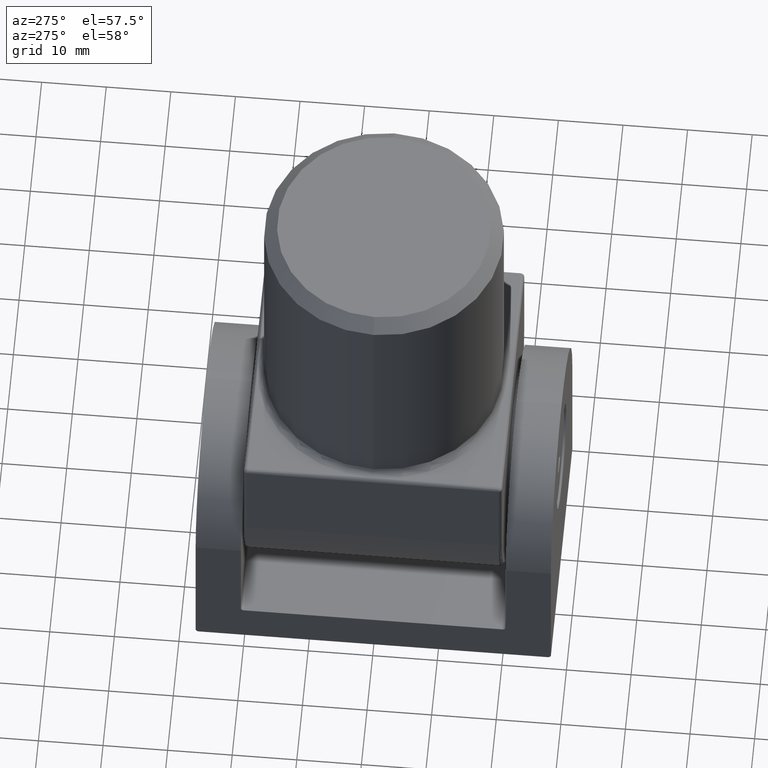
[diagram: clean part render]
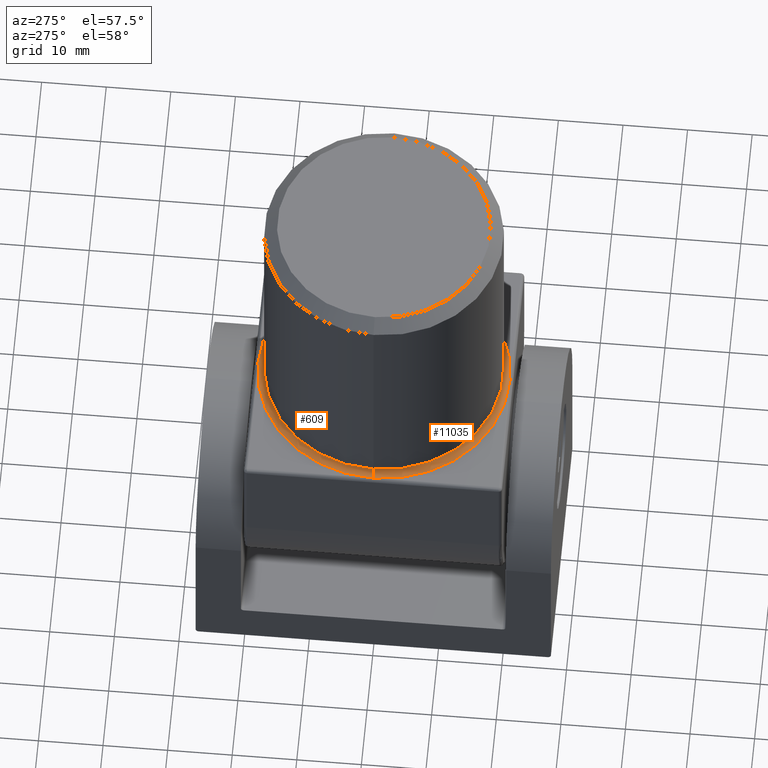
[diagram: same view with one multi-face feature highlighted, each face labeled with its STEP entity id]
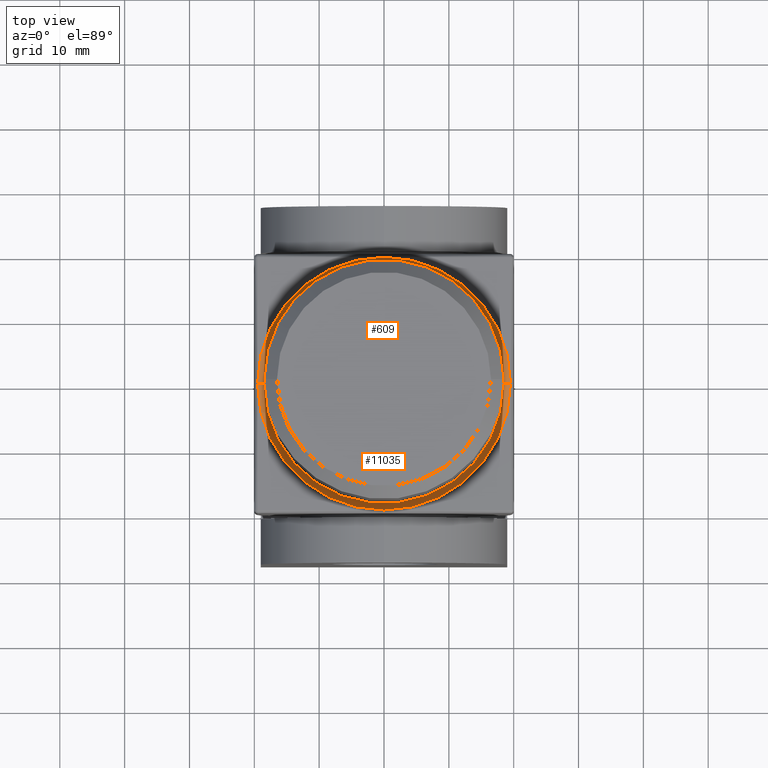
[diagram: same view with one multi-face feature highlighted, each face labeled with its STEP entity id]
A machine part, auxiliary view. The highlighted faces form ONE feature: a constant-radius fillet chain: 2 tangent blend faces with common blend radius 1 mm. The faces share edges in the B-rep.
A second angle (top view) of the same feature is appended — it is thin or edge-on in the first view.
Their STEP definitions:
[1] entity #609 (Torus):
#457 = CARTESIAN_POINT ( 'NONE',  ( 0.000000000000000000, 0.000000000000000000, 0.000000000000000000 ) ) ;
#483 = ORIENTED_EDGE ( 'NONE', *, *, #8889, .F. ) ;
#596 = CARTESIAN_POINT ( 'NONE',  ( 19.50000000000000000, 2.388061258337338939E-15, 1.000000000000000888 ) ) ;
#609 = ADVANCED_FACE ( 'NONE', ( #11898 ), #6009, .F. ) ;
#1089 = DIRECTION ( 'NONE',  ( 0.000000000000000000, 0.000000000000000000, -1.000000000000000000 ) ) ;
#1522 = DIRECTION ( 'NONE',  ( -0.000000000000000000, -1.000000000000000000, -0.000000000000000000 ) ) ;
#1656 = AXIS2_PLACEMENT_3D ( 'NONE', #17560, #7531, #9044 ) ;
#3251 = CARTESIAN_POINT ( 'NONE',  ( 19.50000000000000000, 0.000000000000000000, 0.000000000000000000 ) ) ;
#3421 = EDGE_CURVE ( 'NONE', #4048, #11614, #8863, .T. ) ;
#3516 = CARTESIAN_POINT ( 'NONE',  ( -18.50000000000000000, 0.000000000000000000, 1.000000000000000888 ) ) ;
#3701 = CARTESIAN_POINT ( 'NONE',  ( 0.000000000000000000, 19.50000000000000000, 0.000000000000000000 ) ) ;
#4048 = VERTEX_POINT ( 'NONE', #14614 ) ;
#4253 = AXIS2_PLACEMENT_3D ( 'NONE', #13056, #17253, #7224 ) ;
#5867 = AXIS2_PLACEMENT_3D ( 'NONE', #596, #13409, #10556 ) ;
#5914 = CIRCLE ( 'NONE', #1656, 19.50000000000000000 ) ;
#5950 = AXIS2_PLACEMENT_3D ( 'NONE', #12578, #1089, #8126 ) ;
#6009 = TOROIDAL_SURFACE ( 'NONE', #5950, 19.50000000000000000, 1.000000000000000000 ) ;
#7150 = ORIENTED_EDGE ( 'NONE', *, *, #3421, .T. ) ;
#7224 = DIRECTION ( 'NONE',  ( -1.000000000000000000, 0.000000000000000000, 0.000000000000000000 ) ) ;
#7531 = DIRECTION ( 'NONE',  ( 0.000000000000000000, 0.000000000000000000, -1.000000000000000000 ) ) ;
#7912 = VERTEX_POINT ( 'NONE', #10091 ) ;
#8126 = DIRECTION ( 'NONE',  ( -1.000000000000000000, 0.000000000000000000, 0.000000000000000000 ) ) ;
#8269 = AXIS2_PLACEMENT_3D ( 'NONE', #8876, #1522, #13081 ) ;
#8863 = CIRCLE ( 'NONE', #8269, 1.000000000000000000 ) ;
#8876 = CARTESIAN_POINT ( 'NONE',  ( -19.50000000000000000, 0.000000000000000000, 1.000000000000000888 ) ) ;
#8889 = EDGE_CURVE ( 'NONE', #4048, #11761, #12837, .T. ) ;
#9044 = DIRECTION ( 'NONE',  ( -1.000000000000000000, 0.000000000000000000, 0.000000000000000000 ) ) ;
#9538 = EDGE_LOOP ( 'NONE', ( #11526, #14846, #483, #7150, #14914 ) ) ;
#9623 = CIRCLE ( 'NONE', #5867, 1.000000000000000888 ) ;
#10091 = CARTESIAN_POINT ( 'NONE',  ( 18.50000000000000000, 2.265596578422603396E-15, 1.000000000000000888 ) ) ;
#10556 = DIRECTION ( 'NONE',  ( -1.000000000000000000, -1.224646799147353454E-16, 0.000000000000000000 ) ) ;
#11526 = ORIENTED_EDGE ( 'NONE', *, *, #17445, .F. ) ;
#11614 = VERTEX_POINT ( 'NONE', #3516 ) ;
#11761 = VERTEX_POINT ( 'NONE', #3701 ) ;
#11898 = FACE_OUTER_BOUND ( 'NONE', #9538, .T. ) ;
#12578 = CARTESIAN_POINT ( 'NONE',  ( 0.000000000000000000, 0.000000000000000000, 1.000000000000000888 ) ) ;
#12837 = CIRCLE ( 'NONE', #12913, 19.50000000000000000 ) ;
#12913 = AXIS2_PLACEMENT_3D ( 'NONE', #457, #13389, #14904 ) ;
#13056 = CARTESIAN_POINT ( 'NONE',  ( 0.000000000000000000, 0.000000000000000000, 1.000000000000000888 ) ) ;
#13081 = DIRECTION ( 'NONE',  ( 0.000000000000000000, 0.000000000000000000, -1.000000000000000000 ) ) ;
#13389 = DIRECTION ( 'NONE',  ( 0.000000000000000000, 0.000000000000000000, -1.000000000000000000 ) ) ;
#13409 = DIRECTION ( 'NONE',  ( -1.224646799147353207E-16, 1.000000000000000000, 0.000000000000000000 ) ) ;
#13626 = VERTEX_POINT ( 'NONE', #3251 ) ;
#14614 = CARTESIAN_POINT ( 'NONE',  ( -19.50000000000000000, 0.000000000000000000, 0.000000000000000000 ) ) ;
#14846 = ORIENTED_EDGE ( 'NONE', *, *, #18330, .F. ) ;
#14904 = DIRECTION ( 'NONE',  ( -1.000000000000000000, 0.000000000000000000, 0.000000000000000000 ) ) ;
#14914 = ORIENTED_EDGE ( 'NONE', *, *, #16431, .F. ) ;
#16431 = EDGE_CURVE ( 'NONE', #7912, #11614, #17552, .T. ) ;
#17253 = DIRECTION ( 'NONE',  ( -0.000000000000000000, -0.000000000000000000, 1.000000000000000000 ) ) ;
#17445 = EDGE_CURVE ( 'NONE', #13626, #7912, #9623, .T. ) ;
#17552 = CIRCLE ( 'NONE', #4253, 18.50000000000000000 ) ;
#17560 = CARTESIAN_POINT ( 'NONE',  ( 0.000000000000000000, 0.000000000000000000, 0.000000000000000000 ) ) ;
#18330 = EDGE_CURVE ( 'NONE', #11761, #13626, #5914, .T. ) ;
[2] entity #11035 (Torus):
#596 = CARTESIAN_POINT ( 'NONE',  ( 19.50000000000000000, 2.388061258337338939E-15, 1.000000000000000888 ) ) ;
#701 = ORIENTED_EDGE ( 'NONE', *, *, #4157, .F. ) ;
#897 = EDGE_CURVE ( 'NONE', #11614, #7912, #5776, .T. ) ;
#1379 = AXIS2_PLACEMENT_3D ( 'NONE', #9141, #9021, #10688 ) ;
#1522 = DIRECTION ( 'NONE',  ( -0.000000000000000000, -1.000000000000000000, -0.000000000000000000 ) ) ;
#1528 = VERTEX_POINT ( 'NONE', #4518 ) ;
#1744 = AXIS2_PLACEMENT_3D ( 'NONE', #9035, #7641, #13370 ) ;
#2152 = DIRECTION ( 'NONE',  ( -1.000000000000000000, 0.000000000000000000, 0.000000000000000000 ) ) ;
#3251 = CARTESIAN_POINT ( 'NONE',  ( 19.50000000000000000, 0.000000000000000000, 0.000000000000000000 ) ) ;
#3421 = EDGE_CURVE ( 'NONE', #4048, #11614, #8863, .T. ) ;
#3516 = CARTESIAN_POINT ( 'NONE',  ( -18.50000000000000000, 0.000000000000000000, 1.000000000000000888 ) ) ;
#4048 = VERTEX_POINT ( 'NONE', #14614 ) ;
#4157 = EDGE_CURVE ( 'NONE', #1528, #4048, #18633, .T. ) ;
#4518 = CARTESIAN_POINT ( 'NONE',  ( 0.000000000000000000, -19.50000000000000000, 0.000000000000000000 ) ) ;
#5107 = DIRECTION ( 'NONE',  ( 0.000000000000000000, 0.000000000000000000, -1.000000000000000000 ) ) ;
#5776 = CIRCLE ( 'NONE', #1744, 18.50000000000000000 ) ;
#5867 = AXIS2_PLACEMENT_3D ( 'NONE', #596, #13409, #10556 ) ;
#5910 = ORIENTED_EDGE ( 'NONE', *, *, #897, .F. ) ;
#5976 = AXIS2_PLACEMENT_3D ( 'NONE', #10203, #14709, #14640 ) ;
#7641 = DIRECTION ( 'NONE',  ( -0.000000000000000000, -0.000000000000000000, 1.000000000000000000 ) ) ;
#7912 = VERTEX_POINT ( 'NONE', #10091 ) ;
#8028 = CIRCLE ( 'NONE', #1379, 19.50000000000000000 ) ;
#8269 = AXIS2_PLACEMENT_3D ( 'NONE', #8876, #1522, #13081 ) ;
#8680 = FACE_OUTER_BOUND ( 'NONE', #10714, .T. ) ;
#8863 = CIRCLE ( 'NONE', #8269, 1.000000000000000000 ) ;
#8876 = CARTESIAN_POINT ( 'NONE',  ( -19.50000000000000000, 0.000000000000000000, 1.000000000000000888 ) ) ;
#9021 = DIRECTION ( 'NONE',  ( 0.000000000000000000, 0.000000000000000000, -1.000000000000000000 ) ) ;
#9035 = CARTESIAN_POINT ( 'NONE',  ( 0.000000000000000000, 0.000000000000000000, 1.000000000000000888 ) ) ;
#9141 = CARTESIAN_POINT ( 'NONE',  ( 0.000000000000000000, 0.000000000000000000, 0.000000000000000000 ) ) ;
#9623 = CIRCLE ( 'NONE', #5867, 1.000000000000000888 ) ;
#10091 = CARTESIAN_POINT ( 'NONE',  ( 18.50000000000000000, 2.265596578422603396E-15, 1.000000000000000888 ) ) ;
#10203 = CARTESIAN_POINT ( 'NONE',  ( 0.000000000000000000, 0.000000000000000000, 0.000000000000000000 ) ) ;
#10556 = DIRECTION ( 'NONE',  ( -1.000000000000000000, -1.224646799147353454E-16, 0.000000000000000000 ) ) ;
#10596 = ORIENTED_EDGE ( 'NONE', *, *, #3421, .F. ) ;
#10688 = DIRECTION ( 'NONE',  ( -1.000000000000000000, 0.000000000000000000, 0.000000000000000000 ) ) ;
#10714 = EDGE_LOOP ( 'NONE', ( #14733, #12269, #5910, #10596, #701 ) ) ;
#11035 = ADVANCED_FACE ( 'NONE', ( #8680 ), #13233, .F. ) ;
#11614 = VERTEX_POINT ( 'NONE', #3516 ) ;
#12269 = ORIENTED_EDGE ( 'NONE', *, *, #17445, .T. ) ;
#13081 = DIRECTION ( 'NONE',  ( 0.000000000000000000, 0.000000000000000000, -1.000000000000000000 ) ) ;
#13233 = TOROIDAL_SURFACE ( 'NONE', #16072, 19.50000000000000000, 1.000000000000000000 ) ;
#13370 = DIRECTION ( 'NONE',  ( -1.000000000000000000, 0.000000000000000000, 0.000000000000000000 ) ) ;
#13409 = DIRECTION ( 'NONE',  ( -1.224646799147353207E-16, 1.000000000000000000, 0.000000000000000000 ) ) ;
#13626 = VERTEX_POINT ( 'NONE', #3251 ) ;
#14614 = CARTESIAN_POINT ( 'NONE',  ( -19.50000000000000000, 0.000000000000000000, 0.000000000000000000 ) ) ;
#14640 = DIRECTION ( 'NONE',  ( -1.000000000000000000, 0.000000000000000000, 0.000000000000000000 ) ) ;
#14709 = DIRECTION ( 'NONE',  ( 0.000000000000000000, 0.000000000000000000, -1.000000000000000000 ) ) ;
#14733 = ORIENTED_EDGE ( 'NONE', *, *, #16986, .F. ) ;
#16072 = AXIS2_PLACEMENT_3D ( 'NONE', #16263, #5107, #2152 ) ;
#16263 = CARTESIAN_POINT ( 'NONE',  ( 0.000000000000000000, 0.000000000000000000, 1.000000000000000888 ) ) ;
#16986 = EDGE_CURVE ( 'NONE', #13626, #1528, #8028, .T. ) ;
#17445 = EDGE_CURVE ( 'NONE', #13626, #7912, #9623, .T. ) ;
#18633 = CIRCLE ( 'NONE', #5976, 19.50000000000000000 ) ;